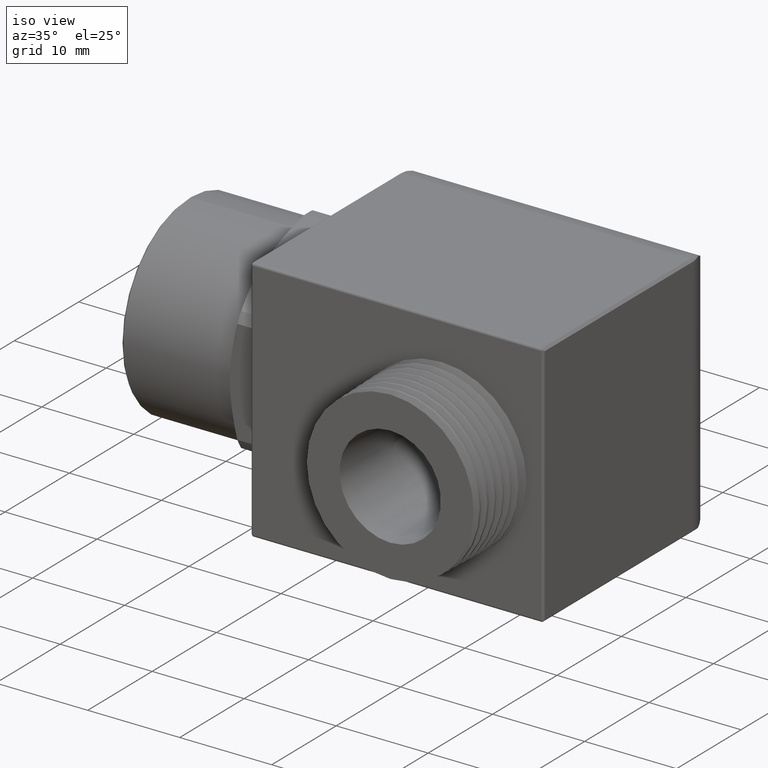
[diagram: clean part render]
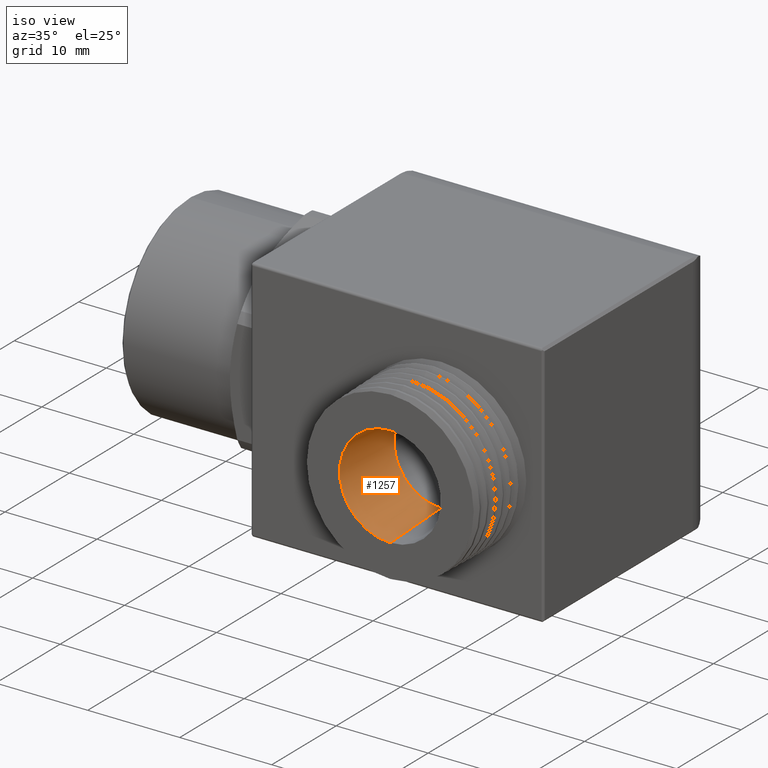
[diagram: same view with one face highlighted and labeled with its STEP entity id]
A machine part, iso view. The second image highlights one B-rep face of the part: STEP entity #1257.
In plain terms, the highlighted conical surface has half-angle 3 deg.
Its self-contained STEP definition (entity closure, byte-faithful):
#1161 = ORIENTED_EDGE ( 'NONE', *, *, #1162, .F. ) ;
#1162 = EDGE_CURVE ( 'NONE', #1206, #1164, #3375, .T. ) ;
#1163 = EDGE_CURVE ( 'NONE', #1164, #1166, #3371, .T. ) ;
#1164 = VERTEX_POINT ( 'NONE', #3420 ) ;
#1165 = ORIENTED_EDGE ( 'NONE', *, *, #1163, .F. ) ;
#1166 = VERTEX_POINT ( 'NONE', #3419 ) ;
#1167 = EDGE_CURVE ( 'NONE', #1171, #1254, #3418, .T. ) ;
#1168 = EDGE_CURVE ( 'NONE', #1171, #1166, #3413, .T. ) ;
#1169 = ORIENTED_EDGE ( 'NONE', *, *, #1168, .T. ) ;
#1170 = ORIENTED_EDGE ( 'NONE', *, *, #1167, .F. ) ;
#1171 = VERTEX_POINT ( 'NONE', #3409 ) ;
#1172 = ORIENTED_EDGE ( 'NONE', *, *, #1204, .F. ) ;
#1204 = EDGE_CURVE ( 'NONE', #1254, #1206, #3434, .T. ) ;
#1206 = VERTEX_POINT ( 'NONE', #3429 ) ;
#1254 = VERTEX_POINT ( 'NONE', #3494 ) ;
#1257 = ADVANCED_FACE ( 'NONE', ( #3491 ), #3485, .F. ) ;
#1264 = EDGE_LOOP ( 'NONE', ( #1170, #1169, #1165, #1161, #1172 ) ) ;
#3371 = CIRCLE ( 'NONE', #3424, 0.2169964115777425500 ) ;
#3372 = DIRECTION ( 'NONE',  ( 0.0000000000000000000, -0.9986295347545738300, -0.05233595624294319600 ) ) ;
#3373 = VECTOR ( 'NONE', #3372, 39.37007874015748100 ) ;
#3374 = CARTESIAN_POINT ( 'NONE',  ( 0.5044499999999999500, -0.8400000000000000800, -0.2169964115777425800 ) ) ;
#3375 = LINE ( 'NONE', #3374, #3373 ) ;
#3409 = CARTESIAN_POINT ( 'NONE',  ( 0.5044499999999999500, -0.5300000000000012500, 0.2007500000000000100 ) ) ;
#3410 = DIRECTION ( 'NONE',  ( 6.409306129323632400E-018, -0.9986295347545738300, 0.05233595624294319600 ) ) ;
#3411 = VECTOR ( 'NONE', #3410, 39.37007874015748100 ) ;
#3412 = CARTESIAN_POINT ( 'NONE',  ( 0.5044499999999999500, -0.8400000000000000800, 0.2169964115777425200 ) ) ;
#3413 = LINE ( 'NONE', #3412, #3411 ) ;
#3414 = DIRECTION ( 'NONE',  ( 0.0000000000000000000, 0.0000000000000000000, -1.000000000000000000 ) ) ;
#3415 = DIRECTION ( 'NONE',  ( 0.0000000000000000000, -1.000000000000000000, 0.0000000000000000000 ) ) ;
#3416 = CARTESIAN_POINT ( 'NONE',  ( 0.5044499999999999500, -0.5300000000000012500, -2.785979454945908300E-017 ) ) ;
#3417 = AXIS2_PLACEMENT_3D ( 'NONE', #3416, #3415, #3414 ) ;
#3418 = CIRCLE ( 'NONE', #3417, 0.2007500000000000400 ) ;
#3419 = CARTESIAN_POINT ( 'NONE',  ( 0.5044499999999999500, -0.8400000000000000800, 0.2169964115777425200 ) ) ;
#3420 = CARTESIAN_POINT ( 'NONE',  ( 0.5044499999999999500, -0.8400000000000000800, -0.2169964115777425800 ) ) ;
#3421 = DIRECTION ( 'NONE',  ( 0.0000000000000000000, 0.0000000000000000000, 1.000000000000000000 ) ) ;
#3422 = DIRECTION ( 'NONE',  ( 0.0000000000000000000, 1.000000000000000000, 0.0000000000000000000 ) ) ;
#3423 = CARTESIAN_POINT ( 'NONE',  ( 0.5044499999999999500, -0.8400000000000000800, -2.785979454945908300E-017 ) ) ;
#3424 = AXIS2_PLACEMENT_3D ( 'NONE', #3423, #3422, #3421 ) ;
#3429 = CARTESIAN_POINT ( 'NONE',  ( 0.5044499999999999500, -0.5300000000000012500, -0.2007500000000000700 ) ) ;
#3430 = DIRECTION ( 'NONE',  ( 0.0000000000000000000, 0.0000000000000000000, -1.000000000000000000 ) ) ;
#3431 = DIRECTION ( 'NONE',  ( 0.0000000000000000000, -1.000000000000000000, 0.0000000000000000000 ) ) ;
#3432 = CARTESIAN_POINT ( 'NONE',  ( 0.5044499999999999500, -0.5300000000000012500, -2.785979454945908300E-017 ) ) ;
#3433 = AXIS2_PLACEMENT_3D ( 'NONE', #3432, #3431, #3430 ) ;
#3434 = CIRCLE ( 'NONE', #3433, 0.2007500000000000400 ) ;
#3485 = CONICAL_SURFACE ( 'NONE', #3486, 0.2169964115777425500, 0.05235987755982924500 ) ;
#3486 = AXIS2_PLACEMENT_3D ( 'NONE', #3541, #3540, #3539 ) ;
#3491 = FACE_OUTER_BOUND ( 'NONE', #1264, .T. ) ;
#3494 = CARTESIAN_POINT ( 'NONE',  ( 0.3036999999999999100, -0.5300000000000012500, 2.458478449288312300E-017 ) ) ;
#3539 = DIRECTION ( 'NONE',  ( 0.0000000000000000000, 0.0000000000000000000, -1.000000000000000000 ) ) ;
#3540 = DIRECTION ( 'NONE',  ( 0.0000000000000000000, -1.000000000000000000, 0.0000000000000000000 ) ) ;
#3541 = CARTESIAN_POINT ( 'NONE',  ( 0.5044499999999999500, -0.8400000000000000800, -2.785979454945908300E-017 ) ) ;